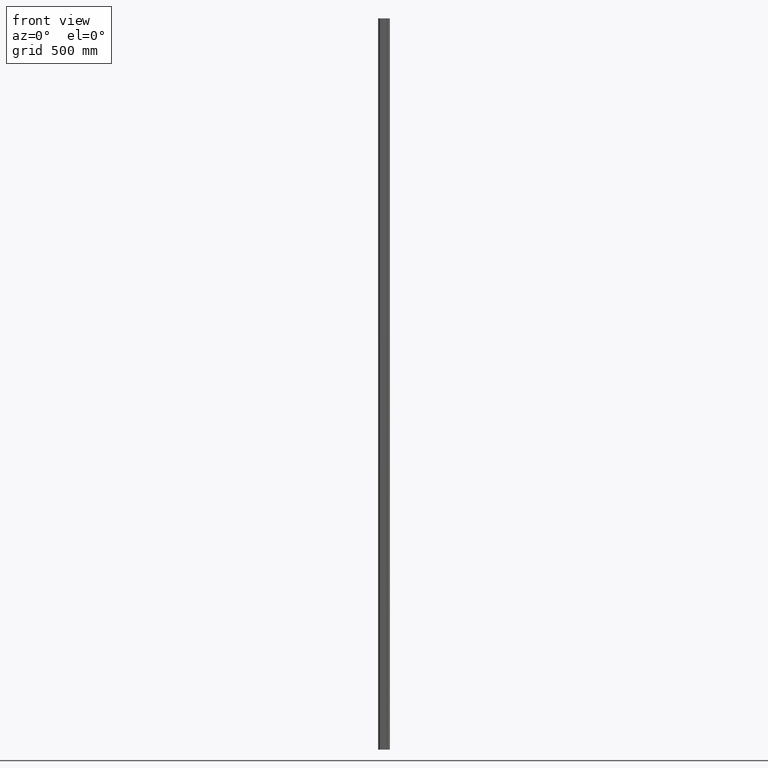
[diagram: clean part render]
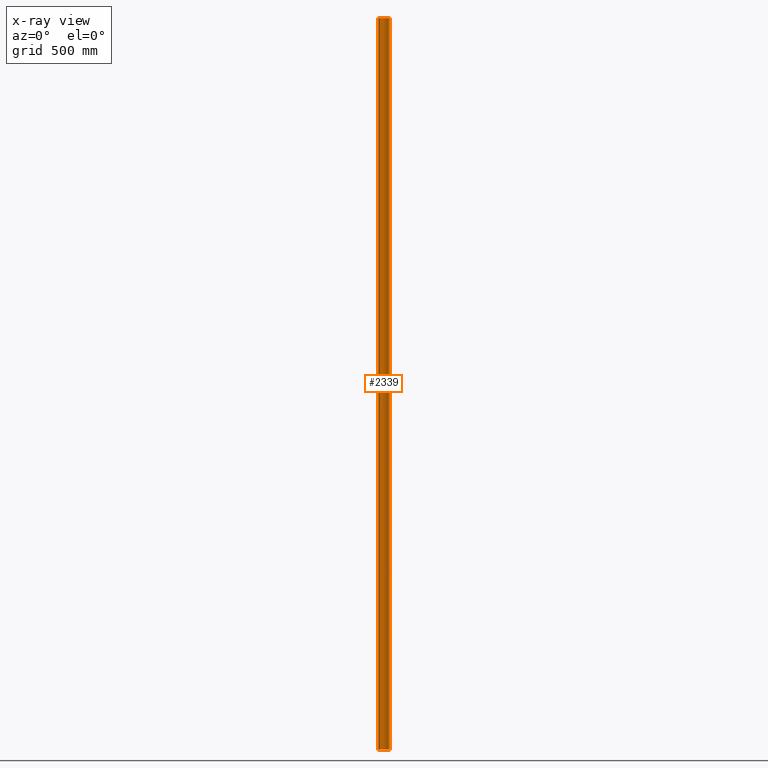
[diagram: x-ray — body ghosted, one internal face saturated and labeled with its STEP entity id]
A machine part, front view, then the same camera in x-ray: the body is ghosted and one INTERNAL B-rep face — a face not visible from any outside direction — is saturated and labeled: STEP entity #2339.
In plain terms, the highlighted cylindrical surface (edge-blend (fillet) strip) has radius 22.65 mm, axis along (0, 0, 1).
Its self-contained STEP definition (entity closure, byte-faithful):
#114 = CARTESIAN_POINT ( 'NONE',  ( 1.045905862409840323E-15, 16.97122564813749790, -1500.000000000000000 ) ) ;
#612 = ORIENTED_EDGE ( 'NONE', *, *, #10280, .T. ) ;
#679 = CYLINDRICAL_SURFACE ( 'NONE', #13751, 22.64999999999999858 ) ;
#1300 = VECTOR ( 'NONE', #8060, 1000.000000000000000 ) ;
#1337 = CARTESIAN_POINT ( 'NONE',  ( 15.84988713318283615, 0.7908802295327060916, 1500.000000000000000 ) ) ;
#1610 = EDGE_CURVE ( 'NONE', #3089, #10883, #3144, .T. ) ;
#2196 = ORIENTED_EDGE ( 'NONE', *, *, #1610, .F. ) ;
#2339 = ADVANCED_FACE ( 'NONE', ( #11173 ), #679, .F. ) ;
#3089 = VERTEX_POINT ( 'NONE', #12422 ) ;
#3144 = CIRCLE ( 'NONE', #11219, 22.64999999999999858 ) ;
#3439 = AXIS2_PLACEMENT_3D ( 'NONE', #10658, #4132, #13298 ) ;
#4131 = ORIENTED_EDGE ( 'NONE', *, *, #11608, .F. ) ;
#4132 = DIRECTION ( 'NONE',  ( 0.000000000000000000, 0.000000000000000000, 1.000000000000000000 ) ) ;
#5281 = LINE ( 'NONE', #14219, #5714 ) ;
#5714 = VECTOR ( 'NONE', #10124, 1000.000000000000000 ) ;
#6099 = CIRCLE ( 'NONE', #3439, 22.64999999999999858 ) ;
#6648 = DIRECTION ( 'NONE',  ( 1.000000000000000000, 0.000000000000000000, 0.000000000000000000 ) ) ;
#6718 = CARTESIAN_POINT ( 'NONE',  ( 15.84988713318283615, 0.7908802295327060916, -1500.000000000000000 ) ) ;
#6947 = VERTEX_POINT ( 'NONE', #1337 ) ;
#7069 = EDGE_LOOP ( 'NONE', ( #612, #4131, #2196, #15384 ) ) ;
#8060 = DIRECTION ( 'NONE',  ( 0.000000000000000000, 0.000000000000000000, 1.000000000000000000 ) ) ;
#10124 = DIRECTION ( 'NONE',  ( 0.000000000000000000, 0.000000000000000000, 1.000000000000000000 ) ) ;
#10280 = EDGE_CURVE ( 'NONE', #6947, #10403, #6099, .T. ) ;
#10403 = VERTEX_POINT ( 'NONE', #16244 ) ;
#10658 = CARTESIAN_POINT ( 'NONE',  ( 1.045905862409840323E-15, 16.97122564813749790, 1500.000000000000000 ) ) ;
#10858 = CARTESIAN_POINT ( 'NONE',  ( 1.045905862409840323E-15, 16.97122564813749790, -1500.000000000000000 ) ) ;
#10883 = VERTEX_POINT ( 'NONE', #13518 ) ;
#11173 = FACE_OUTER_BOUND ( 'NONE', #7069, .T. ) ;
#11219 = AXIS2_PLACEMENT_3D ( 'NONE', #10858, #13381, #13499 ) ;
#11608 = EDGE_CURVE ( 'NONE', #10883, #10403, #5281, .T. ) ;
#12032 = DIRECTION ( 'NONE',  ( 0.000000000000000000, 0.000000000000000000, 1.000000000000000000 ) ) ;
#12422 = CARTESIAN_POINT ( 'NONE',  ( 15.84988713318283615, 0.7908802295327060916, -1500.000000000000000 ) ) ;
#13298 = DIRECTION ( 'NONE',  ( 1.000000000000000000, 0.000000000000000000, 0.000000000000000000 ) ) ;
#13381 = DIRECTION ( 'NONE',  ( 0.000000000000000000, 0.000000000000000000, 1.000000000000000000 ) ) ;
#13499 = DIRECTION ( 'NONE',  ( 1.000000000000000000, 0.000000000000000000, 0.000000000000000000 ) ) ;
#13518 = CARTESIAN_POINT ( 'NONE',  ( -15.84988713318285747, 0.7908802295327234111, -1500.000000000000000 ) ) ;
#13751 = AXIS2_PLACEMENT_3D ( 'NONE', #114, #12032, #6648 ) ;
#13823 = LINE ( 'NONE', #6718, #1300 ) ;
#14219 = CARTESIAN_POINT ( 'NONE',  ( -15.84988713318285747, 0.7908802295327234111, -1500.000000000000000 ) ) ;
#14891 = EDGE_CURVE ( 'NONE', #3089, #6947, #13823, .T. ) ;
#15384 = ORIENTED_EDGE ( 'NONE', *, *, #14891, .T. ) ;
#16244 = CARTESIAN_POINT ( 'NONE',  ( -15.84988713318285747, 0.7908802295327234111, 1500.000000000000000 ) ) ;